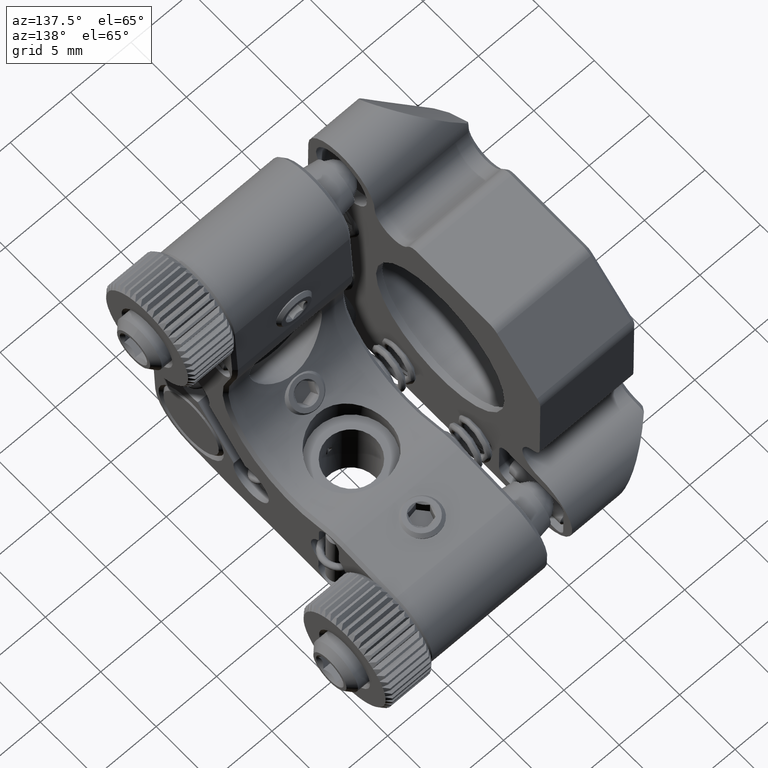
[diagram: clean part render]
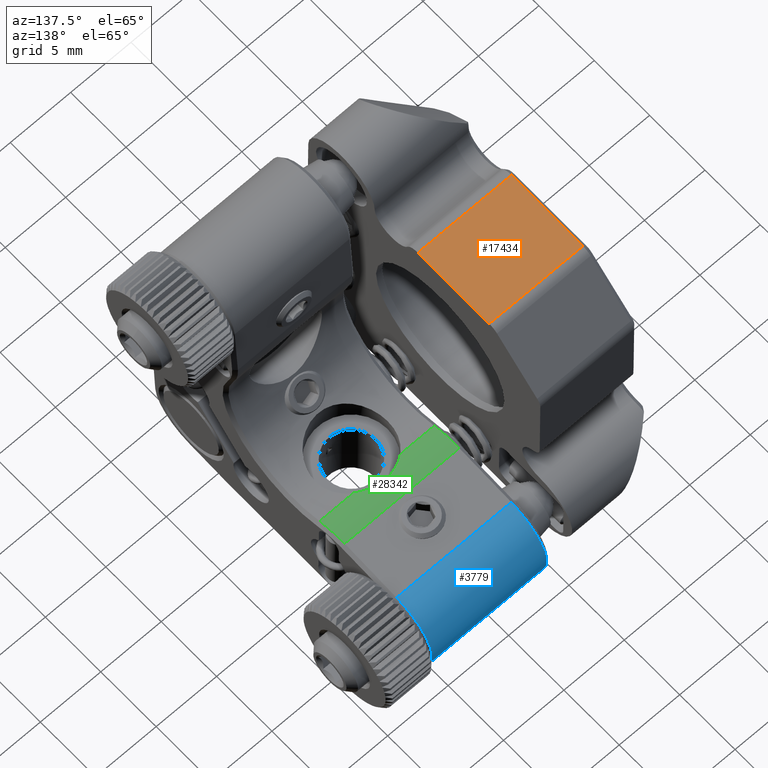
[diagram: same view with three faces highlighted in distinct colors, each labeled with its STEP entity id]
A machine part, auxiliary view with three faces highlighted in distinct colors.
Their STEP definitions:

[orange] entity #17434 — the highlighted planar face has unit normal (-0, -0.0091, -1).
#396 = DIRECTION ( 'NONE',  ( 1.000000000000000000, 1.016130052760167994E-43, -2.072152266093168626E-44 ) ) ;
#704 = AXIS2_PLACEMENT_3D ( 'NONE', #19460, #19280, #11648 ) ;
#2463 = EDGE_CURVE ( 'NONE', #20580, #8849, #32074, .T. ) ;
#5052 = ORIENTED_EDGE ( 'NONE', *, *, #32918, .F. ) ;
#5317 = EDGE_LOOP ( 'NONE', ( #5052, #33038, #24078, #7887 ) ) ;
#6329 = FACE_OUTER_BOUND ( 'NONE', #5317, .T. ) ;
#6720 = VERTEX_POINT ( 'NONE', #32362 ) ;
#6940 = CARTESIAN_POINT ( 'NONE',  ( -18.90289954210474832, -0.7978697728668335820, 34.35779845513792452 ) ) ;
#7791 = CARTESIAN_POINT ( 'NONE',  ( -11.15289954210474477, 2.202005242313719080, 34.33041427548083391 ) ) ;
#7887 = ORIENTED_EDGE ( 'NONE', *, *, #9417, .F. ) ;
#8849 = VERTEX_POINT ( 'NONE', #14624 ) ;
#9228 = EDGE_CURVE ( 'NONE', #8849, #32472, #13694, .T. ) ;
#9417 = EDGE_CURVE ( 'NONE', #6720, #20580, #30719, .T. ) ;
#11648 = DIRECTION ( 'NONE',  ( -1.000000000000000000, -1.016130052760167994E-43, 2.072152266093168626E-44 ) ) ;
#13694 = LINE ( 'NONE', #20986, #14688 ) ;
#14624 = CARTESIAN_POINT ( 'NONE',  ( -11.15289954210474477, 0.09783373027956411561, 34.34962207928042233 ) ) ;
#14688 = VECTOR ( 'NONE', #15839, 1000.000000000000000 ) ;
#15839 = DIRECTION ( 'NONE',  ( -1.000000000000000000, -1.016130052760167994E-43, 2.072152266093168626E-44 ) ) ;
#16930 = VECTOR ( 'NONE', #396, 1000.000000000000000 ) ;
#17434 = ADVANCED_FACE ( 'NONE', ( #6329 ), #19633, .F. ) ;
#17922 = LINE ( 'NONE', #6940, #31710 ) ;
#19280 = DIRECTION ( 'NONE',  ( -1.979312977168389192E-44, -0.009128059885695406772, -0.9999583383935168879 ) ) ;
#19460 = CARTESIAN_POINT ( 'NONE',  ( -17.15289954210474477, -0.7978697728668335820, 34.35779845513792452 ) ) ;
#19633 = PLANE ( 'NONE',  #704 ) ;
#20580 = VERTEX_POINT ( 'NONE', #32708 ) ;
#20986 = CARTESIAN_POINT ( 'NONE',  ( -17.15289954210474477, 0.09783373027956497603, 34.34962207928042233 ) ) ;
#23024 = VECTOR ( 'NONE', #27274, 1000.000000000000114 ) ;
#23419 = DIRECTION ( 'NONE',  ( -1.017979192147492258E-43, 0.9999583383935167769, -0.009128059885695405037 ) ) ;
#24078 = ORIENTED_EDGE ( 'NONE', *, *, #2463, .F. ) ;
#25039 = CARTESIAN_POINT ( 'NONE',  ( -17.15289954210474477, 6.544970050392562300, 34.29076978097788952 ) ) ;
#27274 = DIRECTION ( 'NONE',  ( -7.274789774054842323E-43, -0.9999583383935167769, 0.009128059885695405037 ) ) ;
#30719 = LINE ( 'NONE', #25039, #16930 ) ;
#31710 = VECTOR ( 'NONE', #23419, 1000.000000000000114 ) ;
#32074 = LINE ( 'NONE', #7791, #23024 ) ;
#32362 = CARTESIAN_POINT ( 'NONE',  ( -18.90289954210474832, 6.544970050392562300, 34.29076978097789663 ) ) ;
#32472 = VERTEX_POINT ( 'NONE', #33567 ) ;
#32708 = CARTESIAN_POINT ( 'NONE',  ( -11.15289954210474477, 6.544970050392564076, 34.29076978097788952 ) ) ;
#32918 = EDGE_CURVE ( 'NONE', #32472, #6720, #17922, .T. ) ;
#33038 = ORIENTED_EDGE ( 'NONE', *, *, #9228, .F. ) ;
#33567 = CARTESIAN_POINT ( 'NONE',  ( -18.90289954210474832, 0.09783373027956497603, 34.34962207928041522 ) ) ;

[blue] entity #3779 — the highlighted cylindrical surface (partial cylindrical patch) has radius 3.5 mm, axis along (1, -0, -0).
#816 = CARTESIAN_POINT ( 'NONE',  ( -8.617818469299024287, 11.30956514869625806, 19.73815537661428365 ) ) ;
#2099 = VECTOR ( 'NONE', #27276, 1000.000000000000000 ) ;
#2211 = ORIENTED_EDGE ( 'NONE', *, *, #21242, .T. ) ;
#2222 = ORIENTED_EDGE ( 'NONE', *, *, #32082, .T. ) ;
#2626 = CARTESIAN_POINT ( 'NONE',  ( -8.867818469298683226, 11.03368899777156997, 16.24904483818634304 ) ) ;
#3779 = ADVANCED_FACE ( 'NONE', ( #26929 ), #27105, .T. ) ;
#3801 = EDGE_CURVE ( 'NONE', #12523, #23688, #10788, .T. ) ;
#4491 = CIRCLE ( 'NONE', #31136, 3.499999999999999556 ) ;
#4688 = ORIENTED_EDGE ( 'NONE', *, *, #33361, .F. ) ;
#5719 = CARTESIAN_POINT ( 'NONE',  ( 0.8821815307013189944, 11.30956514869605378, 19.73815537661170794 ) ) ;
#5785 = CARTESIAN_POINT ( 'NONE',  ( 0.8821815307013172180, 11.03368899777156997, 16.24904483818634304 ) ) ;
#6701 = DIRECTION ( 'NONE',  ( -1.000000000000000000, 6.383674169540705541E-19, 4.535192354038399595E-18 ) ) ;
#10788 = LINE ( 'NONE', #32075, #2099 ) ;
#11468 = DIRECTION ( 'NONE',  ( -1.000000000000000000, 6.383674169540705541E-19, 4.535192354038399595E-18 ) ) ;
#12190 = LINE ( 'NONE', #33638, #22847 ) ;
#12523 = VERTEX_POINT ( 'NONE', #5719 ) ;
#13458 = DIRECTION ( 'NONE',  ( 1.000000000000000000, -6.383674169540705541E-19, -4.535192354038399595E-18 ) ) ;
#15867 = AXIS2_PLACEMENT_3D ( 'NONE', #23725, #20893, #31358 ) ;
#17793 = EDGE_LOOP ( 'NONE', ( #34049, #2222, #2211, #4688 ) ) ;
#20893 = DIRECTION ( 'NONE',  ( -1.000000000000000000, 6.383674169540705541E-19, 4.535192354038399595E-18 ) ) ;
#21242 = EDGE_CURVE ( 'NONE', #29945, #24155, #12190, .T. ) ;
#22106 = DIRECTION ( 'NONE',  ( 0.000000000000000000, 0.9999583383935168879, -0.009128059885695722492 ) ) ;
#22847 = VECTOR ( 'NONE', #6701, 1000.000000000000000 ) ;
#23688 = VERTEX_POINT ( 'NONE', #816 ) ;
#23725 = CARTESIAN_POINT ( 'NONE',  ( -8.617818469300045692, 11.03368899777156997, 16.24904483818634304 ) ) ;
#24092 = DIRECTION ( 'NONE',  ( 0.000000000000000000, 0.9999583383935168879, -0.009128059885695722492 ) ) ;
#24155 = VERTEX_POINT ( 'NONE', #24524 ) ;
#24524 = CARTESIAN_POINT ( 'NONE',  ( -8.617818469327787056, 11.20028824938967560, 12.75301213106050824 ) ) ;
#25901 = CARTESIAN_POINT ( 'NONE',  ( 0.8821815307300806541, 11.20028824939185341, 12.75301213107734100 ) ) ;
#26929 = FACE_OUTER_BOUND ( 'NONE', #17793, .T. ) ;
#27035 = AXIS2_PLACEMENT_3D ( 'NONE', #2626, #13458, #24092 ) ;
#27105 = CYLINDRICAL_SURFACE ( 'NONE', #27035, 3.499999999999999556 ) ;
#27276 = DIRECTION ( 'NONE',  ( -1.000000000000000000, 6.383674169540755615E-19, 4.535192354038399595E-18 ) ) ;
#29945 = VERTEX_POINT ( 'NONE', #25901 ) ;
#31136 = AXIS2_PLACEMENT_3D ( 'NONE', #5785, #11468, #22106 ) ;
#31162 = CIRCLE ( 'NONE', #15867, 3.500000000010301093 ) ;
#31358 = DIRECTION ( 'NONE',  ( 0.000000000000000000, -0.009128059885695620143, -0.9999583383935168879 ) ) ;
#32075 = CARTESIAN_POINT ( 'NONE',  ( -15.39277419893964449, 11.30956514869605023, 19.73815537661168662 ) ) ;
#32082 = EDGE_CURVE ( 'NONE', #12523, #29945, #4491, .T. ) ;
#33361 = EDGE_CURVE ( 'NONE', #23688, #24155, #31162, .T. ) ;
#33638 = CARTESIAN_POINT ( 'NONE',  ( -8.867818469298683226, 11.20028824939256396, 12.75301213105110776 ) ) ;
#34049 = ORIENTED_EDGE ( 'NONE', *, *, #3801, .F. ) ;

[green] entity #28342 — the highlighted cylindrical surface (partial cylindrical patch) has radius 5 mm, axis along (1, -0, -0).
#598 = EDGE_CURVE ( 'NONE', #17649, #23601, #9782, .T. ) ;
#946 = CARTESIAN_POINT ( 'NONE',  ( 0.8821815307013172180, 6.219954881721330153, 15.12497452935049225 ) ) ;
#1027 = VECTOR ( 'NONE', #34157, 1000.000000000000000 ) ;
#1100 = DIRECTION ( 'NONE',  ( 0.000000000000000000, 0.9999583383935168879, -0.009128059885695621878 ) ) ;
#1316 = AXIS2_PLACEMENT_3D ( 'NONE', #946, #28069, #33552 ) ;
#2472 = VERTEX_POINT ( 'NONE', #22132 ) ;
#4544 = LINE ( 'NONE', #32023, #1027 ) ;
#5433 = VERTEX_POINT ( 'NONE', #16014 ) ;
#5978 = DIRECTION ( 'NONE',  ( -1.000000000000000000, 6.383674169540705541E-19, 4.535192354038399595E-18 ) ) ;
#6521 = EDGE_CURVE ( 'NONE', #2472, #17649, #4544, .T. ) ;
#6678 = ORIENTED_EDGE ( 'NONE', *, *, #15404, .T. ) ;
#6765 = CYLINDRICAL_SURFACE ( 'NONE', #8277, 5.000000000000000000 ) ;
#7344 = CARTESIAN_POINT ( 'NONE',  ( -2.993910171868105152, 4.942651411642155601, 19.95949345231015215 ) ) ;
#8277 = AXIS2_PLACEMENT_3D ( 'NONE', #31396, #30707, #1100 ) ;
#8730 = CARTESIAN_POINT ( 'NONE',  ( 0.8821815307016589447, 6.614063668756862135, 20.10941815567435142 ) ) ;
#9463 = CARTESIAN_POINT ( 'NONE',  ( -5.234159020796460560, 4.743211733940786878, 19.90282219209242243 ) ) ;
#9782 = B_SPLINE_CURVE_WITH_KNOTS ( 'NONE', 3,
 ( #22949, #28961, #33754, #9463, #31105, #14971, #23470, #14625, #25774, #20463, #12480, #31273, #7344, #15316, #17802, #23296, #34280, #9805 ),
 .UNSPECIFIED., .F., .F.,
 ( 4, 2, 2, 2, 2, 2, 2, 2, 4 ),
 ( -0.002115013221476938141, -0.001586179526454014992, -0.001057345831431091843, -0.0005285121364081686937, 3.215586147544552409E-07, 0.0005291552536376776042, 0.001057988948660600753, 0.001586822643683523902, 0.002115656338706447051 ),
 .UNSPECIFIED. ) ;
#9805 = CARTESIAN_POINT ( 'NONE',  ( -1.928769188667557755, 4.354619249666701108, 19.76399629905445465 ) ) ;
#10140 = DIRECTION ( 'NONE',  ( -1.000000000000000000, 6.383674169540705541E-19, 4.535192354038399595E-18 ) ) ;
#10940 = LINE ( 'NONE', #30457, #19154 ) ;
#11628 = CARTESIAN_POINT ( 'NONE',  ( -1.928769188667557755, 4.354619249666701108, 19.76399629905445465 ) ) ;
#11823 = CARTESIAN_POINT ( 'NONE',  ( -5.806867749929807587, 4.354619249666701108, 19.76399629905445465 ) ) ;
#12206 = CIRCLE ( 'NONE', #32010, 5.000000000028702374 ) ;
#12480 = CARTESIAN_POINT ( 'NONE',  ( -3.512711216687488314, 5.051667814640595999, 19.98667498664417508 ) ) ;
#12725 = EDGE_CURVE ( 'NONE', #5433, #20807, #31879, .T. ) ;
#13673 = ORIENTED_EDGE ( 'NONE', *, *, #12725, .T. ) ;
#13861 = EDGE_LOOP ( 'NONE', ( #6678, #13673, #18789, #17318, #26321, #18546 ) ) ;
#14478 = DIRECTION ( 'NONE',  ( 1.000000000000000000, -6.383674169540705541E-19, -4.535192354038399595E-18 ) ) ;
#14613 = CARTESIAN_POINT ( 'NONE',  ( -8.617818469299368900, 6.614063668759126102, 20.10941815568137869 ) ) ;
#14625 = CARTESIAN_POINT ( 'NONE',  ( -4.224801590661769524, 5.051462097266274931, 19.98662679674478326 ) ) ;
#14971 = CARTESIAN_POINT ( 'NONE',  ( -4.741970854773157384, 4.942572042841772095, 19.95947223355861411 ) ) ;
#15316 = CARTESIAN_POINT ( 'NONE',  ( -2.661823280734441077, 4.819606201768674048, 19.92529753365823808 ) ) ;
#15404 = EDGE_CURVE ( 'NONE', #23601, #5433, #28128, .T. ) ;
#16014 = CARTESIAN_POINT ( 'NONE',  ( 0.8821815306593672190, 4.354619249649914536, 19.76399629910626388 ) ) ;
#17052 = VECTOR ( 'NONE', #14478, 1000.000000000000000 ) ;
#17318 = ORIENTED_EDGE ( 'NONE', *, *, #26210, .F. ) ;
#17649 = VERTEX_POINT ( 'NONE', #11823 ) ;
#17802 = CARTESIAN_POINT ( 'NONE',  ( -2.503824820790438554, 4.744419989584009123, 19.90319401315257153 ) ) ;
#18546 = ORIENTED_EDGE ( 'NONE', *, *, #598, .T. ) ;
#18789 = ORIENTED_EDGE ( 'NONE', *, *, #30555, .T. ) ;
#19154 = VECTOR ( 'NONE', #5978, 1000.000000000000000 ) ;
#20321 = CARTESIAN_POINT ( 'NONE',  ( -8.867818469298683226, 4.354619249666704661, 19.76399629905446176 ) ) ;
#20463 = CARTESIAN_POINT ( 'NONE',  ( -3.688726497645965718, 5.067571974530190815, 19.99036389050282025 ) ) ;
#20807 = VERTEX_POINT ( 'NONE', #8730 ) ;
#22132 = CARTESIAN_POINT ( 'NONE',  ( -8.617818469313917262, 4.354619249683866045, 19.76399629907097832 ) ) ;
#22896 = FACE_OUTER_BOUND ( 'NONE', #13861, .T. ) ;
#22949 = CARTESIAN_POINT ( 'NONE',  ( -5.806867749929807587, 4.354619249666701108, 19.76399629905445465 ) ) ;
#23296 = CARTESIAN_POINT ( 'NONE',  ( -2.203662407134595824, 4.568406466246157649, 19.84524703045060434 ) ) ;
#23470 = CARTESIAN_POINT ( 'NONE',  ( -4.572104534034253653, 4.988903922431658700, 19.97116392845733301 ) ) ;
#23601 = VERTEX_POINT ( 'NONE', #11628 ) ;
#23967 = DIRECTION ( 'NONE',  ( 0.000000000000000000, -0.009128059885695611470, -0.9999583383935167769 ) ) ;
#25774 = CARTESIAN_POINT ( 'NONE',  ( -4.046258240654386107, 5.067610924079094303, 19.99037311566240405 ) ) ;
#25925 = CARTESIAN_POINT ( 'NONE',  ( -8.617818469300045692, 6.219954881721330153, 15.12497452935049225 ) ) ;
#26210 = EDGE_CURVE ( 'NONE', #2472, #32390, #12206, .T. ) ;
#26321 = ORIENTED_EDGE ( 'NONE', *, *, #6521, .T. ) ;
#28069 = DIRECTION ( 'NONE',  ( -1.000000000000000000, 6.383674169540705541E-19, 4.535192354038399595E-18 ) ) ;
#28128 = LINE ( 'NONE', #20321, #17052 ) ;
#28342 = ADVANCED_FACE ( 'NONE', ( #22896 ), #6765, .T. ) ;
#28961 = CARTESIAN_POINT ( 'NONE',  ( -5.674992642035781465, 4.466742970297887361, 19.80908088405421452 ) ) ;
#30457 = CARTESIAN_POINT ( 'NONE',  ( -8.867818469298683226, 6.614063668756283043, 20.10941815567247204 ) ) ;
#30555 = EDGE_CURVE ( 'NONE', #20807, #32390, #10940, .T. ) ;
#30707 = DIRECTION ( 'NONE',  ( 1.000000000000000000, -6.383674169540705541E-19, -4.535192354038399595E-18 ) ) ;
#31105 = CARTESIAN_POINT ( 'NONE',  ( -5.073898954001463402, 4.819563515778398255, 19.92528483090913483 ) ) ;
#31273 = CARTESIAN_POINT ( 'NONE',  ( -3.165981056664564974, 4.989475523853696082, 19.97130783994927228 ) ) ;
#31396 = CARTESIAN_POINT ( 'NONE',  ( -8.867818469298683226, 6.219954881721330153, 15.12497452935049225 ) ) ;
#31879 = CIRCLE ( 'NONE', #1316, 5.000000000000000000 ) ;
#32010 = AXIS2_PLACEMENT_3D ( 'NONE', #25925, #10140, #23967 ) ;
#32023 = CARTESIAN_POINT ( 'NONE',  ( -8.867818469298683226, 4.354619249666708214, 19.76399629905444755 ) ) ;
#32390 = VERTEX_POINT ( 'NONE', #14613 ) ;
#33552 = DIRECTION ( 'NONE',  ( 0.000000000000000000, 0.9999583383935168879, -0.009128059885697356601 ) ) ;
#33754 = CARTESIAN_POINT ( 'NONE',  ( -5.533961873954260646, 4.567070699923843513, 19.84478093369050455 ) ) ;
#34157 = DIRECTION ( 'NONE',  ( 1.000000000000000000, -6.383674169540705541E-19, -4.535192354038399595E-18 ) ) ;
#34280 = CARTESIAN_POINT ( 'NONE',  ( -2.060639270736553730, 4.466738697207967235, 19.80907916585861983 ) ) ;